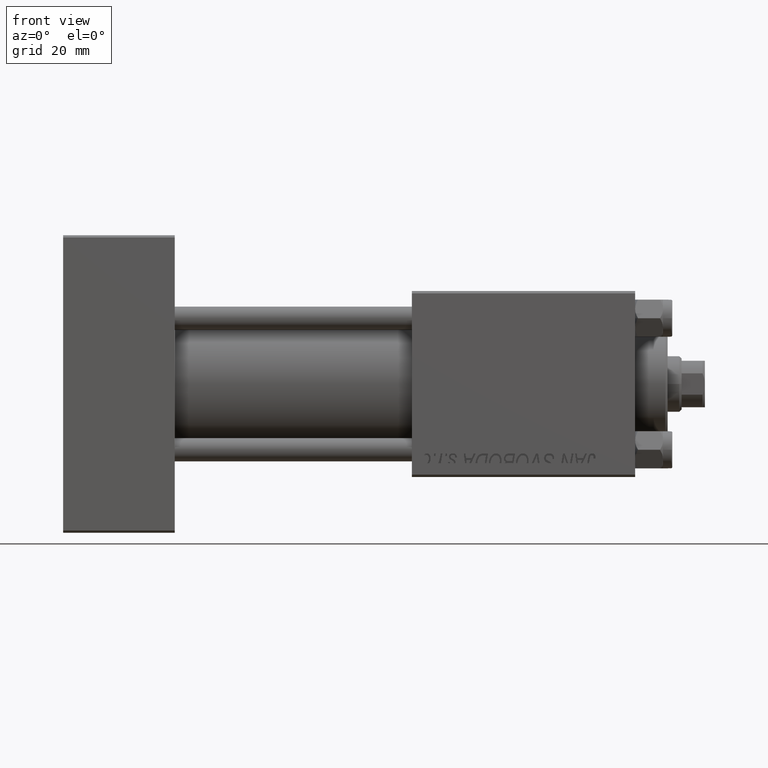
[diagram: clean part render]
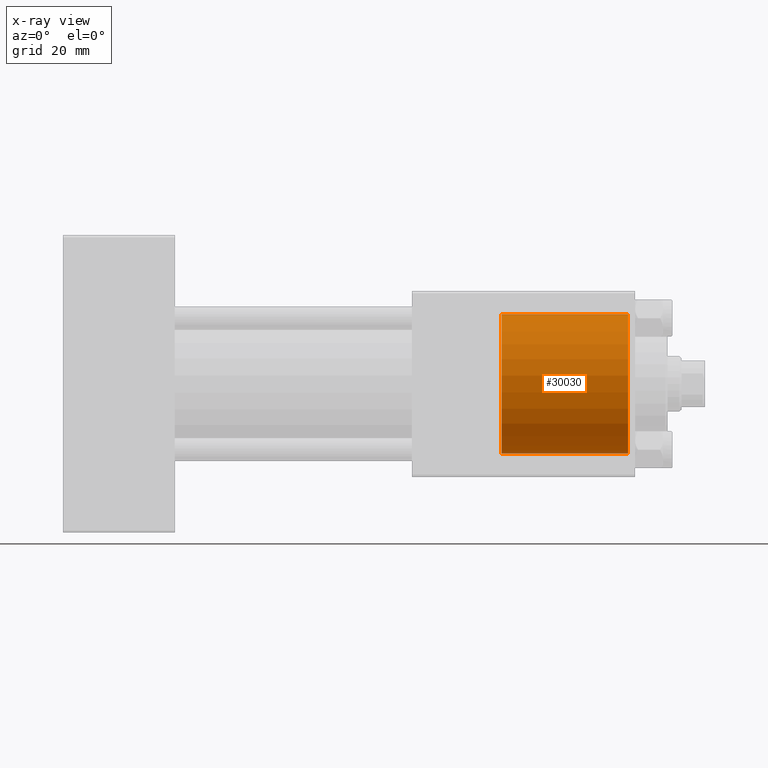
[diagram: x-ray — body ghosted, one internal face saturated and labeled with its STEP entity id]
A machine part, front view, then the same camera in x-ray: the body is ghosted and one INTERNAL B-rep face — a face not visible from any outside direction — is saturated and labeled: STEP entity #30030.
In plain terms, the highlighted cylindrical surface (partial cylindrical patch) has radius 15 mm, axis along (1, 0, 0).
Its self-contained STEP definition (entity closure, byte-faithful):
#2408 = CARTESIAN_POINT ( 'NONE',  ( 121.5000000000000000, 0.000000000000000000, -15.00000000000000000 ) ) ;
#2524 = CARTESIAN_POINT ( 'NONE',  ( 121.5000000000000000, 1.836970198721029589E-15, 15.00000000000000000 ) ) ;
#3197 = CIRCLE ( 'NONE', #31424, 15.00000000000000000 ) ;
#3957 = EDGE_CURVE ( 'NONE', #35770, #44147, #16316, .T. ) ;
#4955 = CARTESIAN_POINT ( 'NONE',  ( 94.29999999999999716, 1.836970198721029589E-15, 15.00000000000000000 ) ) ;
#5301 = VERTEX_POINT ( 'NONE', #6887 ) ;
#5532 = VECTOR ( 'NONE', #39036, 1000.000000000000000 ) ;
#6137 = ORIENTED_EDGE ( 'NONE', *, *, #3957, .T. ) ;
#6805 = FACE_OUTER_BOUND ( 'NONE', #13422, .T. ) ;
#6887 = CARTESIAN_POINT ( 'NONE',  ( 94.29999999999999716, 0.000000000000000000, -15.00000000000000000 ) ) ;
#7207 = DIRECTION ( 'NONE',  ( 1.000000000000000000, 0.000000000000000000, 0.000000000000000000 ) ) ;
#9792 = VECTOR ( 'NONE', #30779, 1000.000000000000000 ) ;
#11343 = DIRECTION ( 'NONE',  ( 1.000000000000000000, -0.000000000000000000, -0.000000000000000000 ) ) ;
#12391 = CARTESIAN_POINT ( 'NONE',  ( 94.29999999999999716, 0.000000000000000000, 0.000000000000000000 ) ) ;
#13422 = EDGE_LOOP ( 'NONE', ( #33764, #6137, #15019, #24972 ) ) ;
#14174 = EDGE_CURVE ( 'NONE', #5301, #49631, #30531, .T. ) ;
#14784 = CARTESIAN_POINT ( 'NONE',  ( 121.5000000000000000, 0.000000000000000000, 0.000000000000000000 ) ) ;
#14875 = DIRECTION ( 'NONE',  ( 0.000000000000000000, 0.000000000000000000, -1.000000000000000000 ) ) ;
#15019 = ORIENTED_EDGE ( 'NONE', *, *, #25852, .T. ) ;
#15139 = CARTESIAN_POINT ( 'NONE',  ( 94.29999999999999716, 0.000000000000000000, -15.00000000000000000 ) ) ;
#16316 = LINE ( 'NONE', #4955, #5532 ) ;
#16458 = DIRECTION ( 'NONE',  ( 0.000000000000000000, 0.000000000000000000, 1.000000000000000000 ) ) ;
#20376 = CARTESIAN_POINT ( 'NONE',  ( 94.29999999999999716, 1.836970198721029589E-15, 15.00000000000000000 ) ) ;
#23900 = AXIS2_PLACEMENT_3D ( 'NONE', #26484, #11343, #14875 ) ;
#24972 = ORIENTED_EDGE ( 'NONE', *, *, #14174, .F. ) ;
#25852 = EDGE_CURVE ( 'NONE', #44147, #49631, #43063, .T. ) ;
#26484 = CARTESIAN_POINT ( 'NONE',  ( 94.29999999999999716, 0.000000000000000000, 0.000000000000000000 ) ) ;
#27752 = AXIS2_PLACEMENT_3D ( 'NONE', #14784, #7207, #16458 ) ;
#27773 = DIRECTION ( 'NONE',  ( 1.000000000000000000, 0.000000000000000000, 0.000000000000000000 ) ) ;
#29536 = CYLINDRICAL_SURFACE ( 'NONE', #23900, 15.00000000000000000 ) ;
#30030 = ADVANCED_FACE ( 'NONE', ( #6805 ), #29536, .F. ) ;
#30531 = LINE ( 'NONE', #15139, #9792 ) ;
#30779 = DIRECTION ( 'NONE',  ( 1.000000000000000000, -0.000000000000000000, -0.000000000000000000 ) ) ;
#31424 = AXIS2_PLACEMENT_3D ( 'NONE', #12391, #27773, #35605 ) ;
#33764 = ORIENTED_EDGE ( 'NONE', *, *, #43210, .F. ) ;
#35605 = DIRECTION ( 'NONE',  ( 0.000000000000000000, 0.000000000000000000, -1.000000000000000000 ) ) ;
#35770 = VERTEX_POINT ( 'NONE', #20376 ) ;
#39036 = DIRECTION ( 'NONE',  ( 1.000000000000000000, -0.000000000000000000, -0.000000000000000000 ) ) ;
#43063 = CIRCLE ( 'NONE', #27752, 15.00000000000000000 ) ;
#43210 = EDGE_CURVE ( 'NONE', #35770, #5301, #3197, .T. ) ;
#44147 = VERTEX_POINT ( 'NONE', #2524 ) ;
#49631 = VERTEX_POINT ( 'NONE', #2408 ) ;